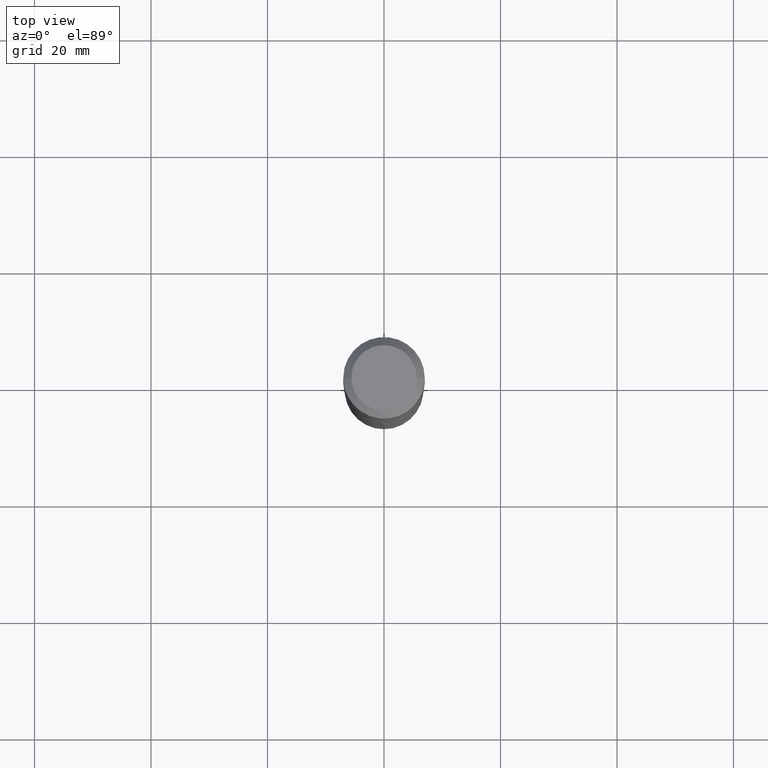
[diagram: clean part render]
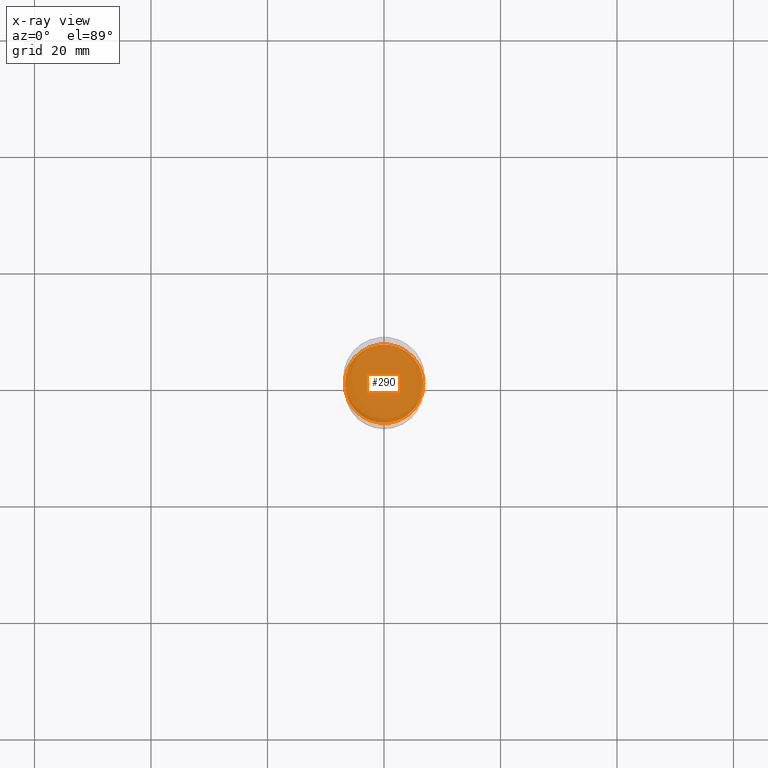
[diagram: x-ray — body ghosted, one internal face saturated and labeled with its STEP entity id]
A machine part, top view, then the same camera in x-ray: the body is ghosted and one INTERNAL B-rep face — a face not visible from any outside direction — is saturated and labeled: STEP entity #290.
In plain terms, the highlighted planar face has unit normal (-0, 0, 1).
Its self-contained STEP definition (entity closure, byte-faithful):
#11 = PLANE ( 'NONE',  #246 ) ;
#30 = VERTEX_POINT ( 'NONE', #394 ) ;
#41 = DIRECTION ( 'NONE',  ( -2.445468806185136597E-29, 3.491481338843145583E-15, 1.000000000000000000 ) ) ;
#43 = DIRECTION ( 'NONE',  ( -2.445468806185136597E-29, 3.491481338843145583E-15, 1.000000000000000000 ) ) ;
#59 = EDGE_LOOP ( 'NONE', ( #97, #457 ) ) ;
#79 = CARTESIAN_POINT ( 'NONE',  ( 5.824862149452375369E-29, -8.316359400990487656E-15, -2.381899999999999462 ) ) ;
#97 = ORIENTED_EDGE ( 'NONE', *, *, #461, .F. ) ;
#112 = EDGE_CURVE ( 'NONE', #282, #30, #353, .T. ) ;
#114 = CARTESIAN_POINT ( 'NONE',  ( 5.824862149452375369E-29, -8.316359400990487656E-15, -2.381899999999999462 ) ) ;
#220 = DIRECTION ( 'NONE',  ( 1.000000000000000000, -6.982962677686265922E-15, 0.000000000000000000 ) ) ;
#227 = FACE_OUTER_BOUND ( 'NONE', #59, .T. ) ;
#241 = CARTESIAN_POINT ( 'NONE',  ( 5.824862149452375369E-29, -8.316359400990487656E-15, -2.381899999999999462 ) ) ;
#246 = AXIS2_PLACEMENT_3D ( 'NONE', #241, #317, #467 ) ;
#259 = CIRCLE ( 'NONE', #454, 0.2652499999999999858 ) ;
#272 = DIRECTION ( 'NONE',  ( 1.000000000000000000, -6.982962677686265922E-15, 0.000000000000000000 ) ) ;
#282 = VERTEX_POINT ( 'NONE', #285 ) ;
#285 = CARTESIAN_POINT ( 'NONE',  ( -0.2652499999999999858, -6.428995567212710813E-15, -2.381899999999999462 ) ) ;
#290 = ADVANCED_FACE ( 'NONE', ( #227 ), #11, .F. ) ;
#317 = DIRECTION ( 'NONE',  ( -2.438088387897960049E-29, 3.491481338843145188E-15, 1.000000000000000000 ) ) ;
#331 = AXIS2_PLACEMENT_3D ( 'NONE', #114, #43, #220 ) ;
#353 = CIRCLE ( 'NONE', #331, 0.2652499999999999858 ) ;
#394 = CARTESIAN_POINT ( 'NONE',  ( 0.2652499999999999858, -1.016859025124677000E-14, -2.381899999999999462 ) ) ;
#454 = AXIS2_PLACEMENT_3D ( 'NONE', #79, #41, #272 ) ;
#457 = ORIENTED_EDGE ( 'NONE', *, *, #112, .F. ) ;
#461 = EDGE_CURVE ( 'NONE', #30, #282, #259, .T. ) ;
#467 = DIRECTION ( 'NONE',  ( 1.000000000000000000, -6.982962677686265922E-15, 4.876176775795935793E-29 ) ) ;